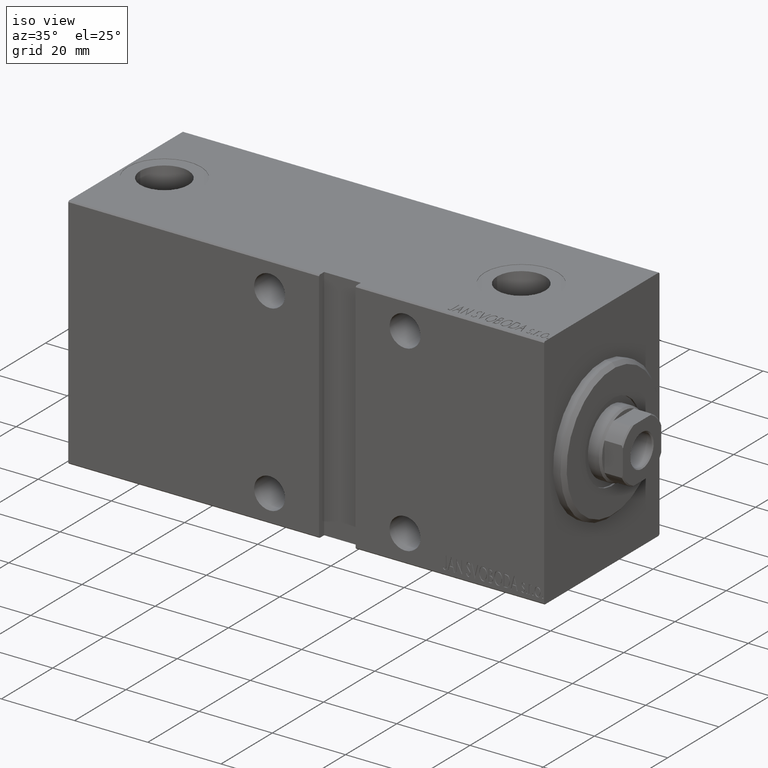
[diagram: clean part render]
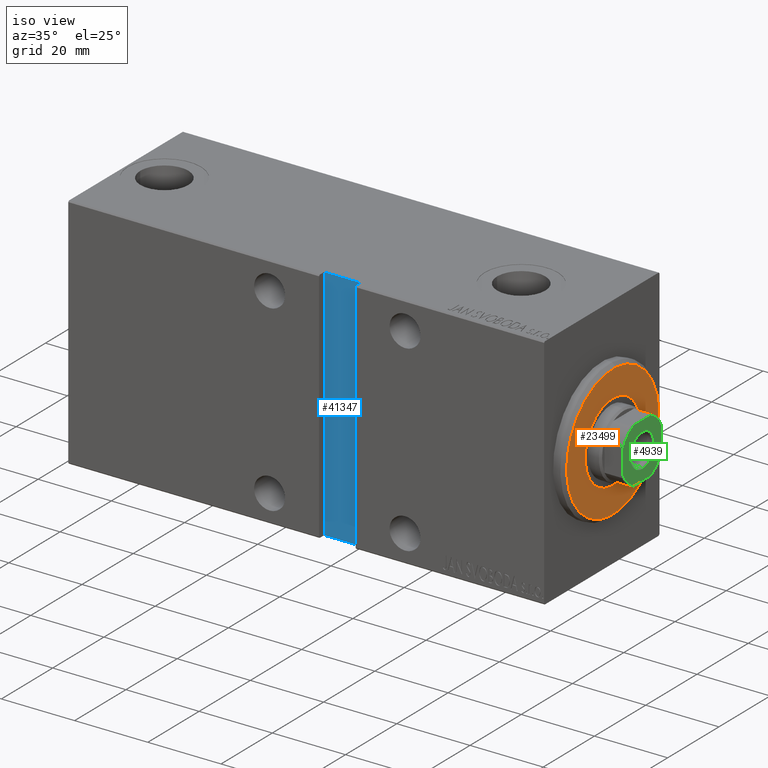
[diagram: same view with three faces highlighted in distinct colors, each labeled with its STEP entity id]
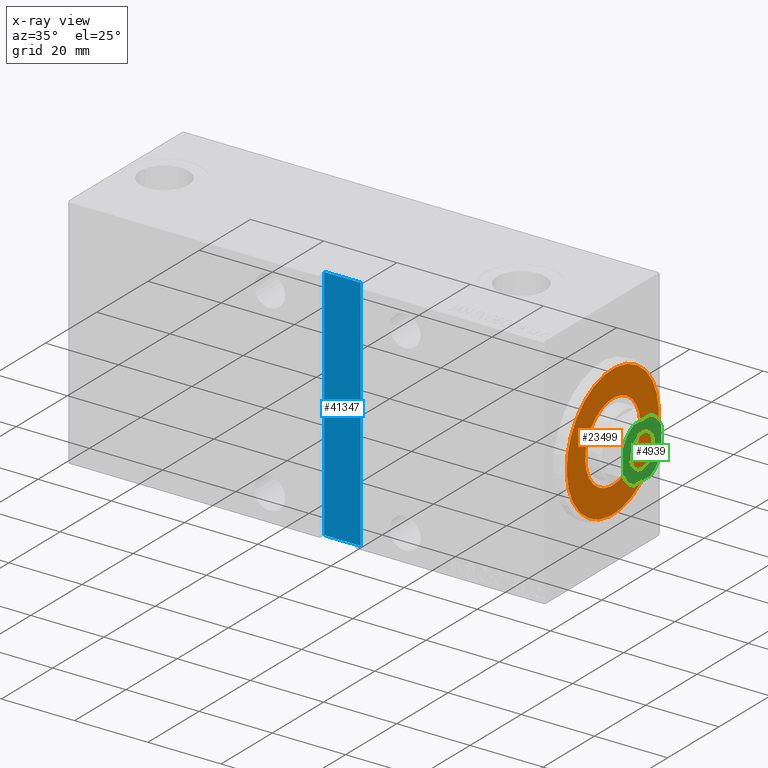
[diagram: x-ray of the same camera — body ghosted, the three highlighted faces saturated]
A machine part, iso view with three faces highlighted in distinct colors.
The next image is the same camera in x-ray (body ghosted, the three faces saturated) — at least one of them is partly hidden behind the body in this view.
Their STEP definitions:

[orange] entity #23499 — the highlighted planar face has unit normal (1, -0, -0).
#86 = DIRECTION ( 'NONE',  ( 1.000000000000000000, 0.000000000000000000, 0.000000000000000000 ) ) ;
#842 = EDGE_CURVE ( 'NONE', #10197, #4160, #37323, .T. ) ;
#1240 = CARTESIAN_POINT ( 'NONE',  ( 3.000000000000000000, 2.265596578422603002E-15, -17.99999999999999645 ) ) ;
#1411 = VERTEX_POINT ( 'NONE', #3026 ) ;
#3026 = CARTESIAN_POINT ( 'NONE',  ( 3.000000000000000000, 1.316495309083404618E-15, 10.75000000000000000 ) ) ;
#3244 = DIRECTION ( 'NONE',  ( 1.000000000000000000, 0.000000000000000000, 0.000000000000000000 ) ) ;
#4160 = VERTEX_POINT ( 'NONE', #4492 ) ;
#4268 = EDGE_LOOP ( 'NONE', ( #31704, #44466 ) ) ;
#4492 = CARTESIAN_POINT ( 'NONE',  ( 3.000000000000000000, 0.000000000000000000, 17.99999999999999645 ) ) ;
#4587 = CIRCLE ( 'NONE', #41261, 10.75000000000000000 ) ;
#4861 = DIRECTION ( 'NONE',  ( 1.000000000000000000, -0.000000000000000000, 0.000000000000000000 ) ) ;
#6183 = DIRECTION ( 'NONE',  ( 0.000000000000000000, 0.000000000000000000, -1.000000000000000000 ) ) ;
#6462 = DIRECTION ( 'NONE',  ( 0.000000000000000000, 0.000000000000000000, -1.000000000000000000 ) ) ;
#7132 = PLANE ( 'NONE',  #38065 ) ;
#10197 = VERTEX_POINT ( 'NONE', #1240 ) ;
#12919 = EDGE_CURVE ( 'NONE', #16190, #1411, #4587, .T. ) ;
#15247 = ORIENTED_EDGE ( 'NONE', *, *, #842, .T. ) ;
#16190 = VERTEX_POINT ( 'NONE', #16822 ) ;
#16387 = EDGE_CURVE ( 'NONE', #4160, #10197, #21342, .T. ) ;
#16822 = CARTESIAN_POINT ( 'NONE',  ( 3.000000000000000000, 0.000000000000000000, -10.75000000000000000 ) ) ;
#18145 = CARTESIAN_POINT ( 'NONE',  ( 3.000000000000000000, 0.000000000000000000, 0.000000000000000000 ) ) ;
#19906 = AXIS2_PLACEMENT_3D ( 'NONE', #18145, #4861, #31886 ) ;
#21342 = CIRCLE ( 'NONE', #19906, 17.99999999999999645 ) ;
#21443 = CARTESIAN_POINT ( 'NONE',  ( 3.000000000000000000, 0.000000000000000000, 0.000000000000000000 ) ) ;
#21561 = CIRCLE ( 'NONE', #39576, 10.75000000000000000 ) ;
#22738 = DIRECTION ( 'NONE',  ( 0.000000000000000000, 0.000000000000000000, -1.000000000000000000 ) ) ;
#23499 = ADVANCED_FACE ( 'NONE', ( #23567, #31222 ), #7132, .T. ) ;
#23567 = FACE_OUTER_BOUND ( 'NONE', #36703, .T. ) ;
#25798 = EDGE_CURVE ( 'NONE', #1411, #16190, #21561, .T. ) ;
#29409 = AXIS2_PLACEMENT_3D ( 'NONE', #36490, #43675, #22738 ) ;
#30997 = DIRECTION ( 'NONE',  ( 1.000000000000000000, -0.000000000000000000, 0.000000000000000000 ) ) ;
#31222 = FACE_BOUND ( 'NONE', #4268, .T. ) ;
#31704 = ORIENTED_EDGE ( 'NONE', *, *, #12919, .F. ) ;
#31886 = DIRECTION ( 'NONE',  ( 0.000000000000000000, 0.000000000000000000, -1.000000000000000000 ) ) ;
#33933 = CARTESIAN_POINT ( 'NONE',  ( 3.000000000000000000, 0.000000000000000000, 0.000000000000000000 ) ) ;
#35188 = DIRECTION ( 'NONE',  ( 0.000000000000000000, 0.000000000000000000, -1.000000000000000000 ) ) ;
#36490 = CARTESIAN_POINT ( 'NONE',  ( 3.000000000000000000, 0.000000000000000000, 0.000000000000000000 ) ) ;
#36703 = EDGE_LOOP ( 'NONE', ( #40261, #15247 ) ) ;
#37037 = CARTESIAN_POINT ( 'NONE',  ( 3.000000000000000000, 0.000000000000000000, 0.000000000000000000 ) ) ;
#37323 = CIRCLE ( 'NONE', #29409, 17.99999999999999645 ) ;
#38065 = AXIS2_PLACEMENT_3D ( 'NONE', #33933, #30997, #6462 ) ;
#39576 = AXIS2_PLACEMENT_3D ( 'NONE', #21443, #86, #35188 ) ;
#40261 = ORIENTED_EDGE ( 'NONE', *, *, #16387, .T. ) ;
#41261 = AXIS2_PLACEMENT_3D ( 'NONE', #37037, #3244, #6183 ) ;
#43675 = DIRECTION ( 'NONE',  ( 1.000000000000000000, -0.000000000000000000, 0.000000000000000000 ) ) ;
#44466 = ORIENTED_EDGE ( 'NONE', *, *, #25798, .F. ) ;

[blue] entity #41347 — the highlighted planar face has unit normal (0, -1, -0).
#1552 = ORIENTED_EDGE ( 'NONE', *, *, #30249, .T. ) ;
#2068 = VERTEX_POINT ( 'NONE', #19594 ) ;
#2295 = ORIENTED_EDGE ( 'NONE', *, *, #37093, .F. ) ;
#2541 = LINE ( 'NONE', #11830, #33540 ) ;
#4527 = LINE ( 'NONE', #31772, #13687 ) ;
#6230 = EDGE_CURVE ( 'NONE', #30309, #40309, #22957, .T. ) ;
#7569 = ORIENTED_EDGE ( 'NONE', *, *, #6230, .T. ) ;
#8136 = CARTESIAN_POINT ( 'NONE',  ( 0.000000000000000000, 20.49999999999999645, 0.000000000000000000 ) ) ;
#8786 = CARTESIAN_POINT ( 'NONE',  ( 51.50000000000001421, 20.49999999999999645, 32.50000000000000000 ) ) ;
#11026 = CARTESIAN_POINT ( 'NONE',  ( 51.50000000000001421, 20.49999999999999645, 32.50000000000000000 ) ) ;
#11830 = CARTESIAN_POINT ( 'NONE',  ( 51.50000000000001421, 20.49999999999999645, -32.50000000000000000 ) ) ;
#13687 = VECTOR ( 'NONE', #39427, 1000.000000000000000 ) ;
#13747 = VECTOR ( 'NONE', #32881, 1000.000000000000000 ) ;
#14913 = CARTESIAN_POINT ( 'NONE',  ( 51.50000000000001421, 20.49999999999999645, -32.50000000000000000 ) ) ;
#15464 = EDGE_CURVE ( 'NONE', #26112, #2068, #2541, .T. ) ;
#16057 = DIRECTION ( 'NONE',  ( 1.000000000000000000, 0.000000000000000000, 0.000000000000000000 ) ) ;
#17124 = DIRECTION ( 'NONE',  ( 0.000000000000000000, 0.000000000000000000, -1.000000000000000000 ) ) ;
#17458 = VECTOR ( 'NONE', #17124, 1000.000000000000000 ) ;
#17817 = PLANE ( 'NONE',  #38417 ) ;
#19594 = CARTESIAN_POINT ( 'NONE',  ( 61.50000000000000000, 20.50000000000000000, -32.50000000000000000 ) ) ;
#19813 = CARTESIAN_POINT ( 'NONE',  ( 51.50000000000001421, 20.49999999999999645, 32.50000000000000000 ) ) ;
#21196 = DIRECTION ( 'NONE',  ( 0.000000000000000000, -0.000000000000000000, 1.000000000000000000 ) ) ;
#22789 = EDGE_LOOP ( 'NONE', ( #42897, #2295, #7569, #1552 ) ) ;
#22957 = LINE ( 'NONE', #8786, #13747 ) ;
#24320 = LINE ( 'NONE', #11026, #17458 ) ;
#25287 = CARTESIAN_POINT ( 'NONE',  ( 61.50000000000000711, 20.49999999999999645, 32.50000000000000000 ) ) ;
#26112 = VERTEX_POINT ( 'NONE', #14913 ) ;
#30249 = EDGE_CURVE ( 'NONE', #40309, #2068, #4527, .T. ) ;
#30309 = VERTEX_POINT ( 'NONE', #19813 ) ;
#31772 = CARTESIAN_POINT ( 'NONE',  ( 61.50000000000000711, 20.49999999999999645, 32.50000000000000000 ) ) ;
#32881 = DIRECTION ( 'NONE',  ( 1.000000000000000000, 0.000000000000000000, 0.000000000000000000 ) ) ;
#33540 = VECTOR ( 'NONE', #16057, 1000.000000000000000 ) ;
#34725 = DIRECTION ( 'NONE',  ( -0.000000000000000000, 1.000000000000000000, 0.000000000000000000 ) ) ;
#37093 = EDGE_CURVE ( 'NONE', #30309, #26112, #24320, .T. ) ;
#38098 = FACE_OUTER_BOUND ( 'NONE', #22789, .T. ) ;
#38417 = AXIS2_PLACEMENT_3D ( 'NONE', #8136, #34725, #21196 ) ;
#39427 = DIRECTION ( 'NONE',  ( -2.135044278125300850E-16, 0.000000000000000000, -1.000000000000000000 ) ) ;
#40309 = VERTEX_POINT ( 'NONE', #25287 ) ;
#41347 = ADVANCED_FACE ( 'NONE', ( #38098 ), #17817, .T. ) ;
#42897 = ORIENTED_EDGE ( 'NONE', *, *, #15464, .F. ) ;

[green] entity #4939 — the highlighted planar face has unit normal (1, 0, -0).
#148 = DIRECTION ( 'NONE',  ( -0.000000000000000000, 0.000000000000000000, 1.000000000000000000 ) ) ;
#927 = DIRECTION ( 'NONE',  ( 1.000000000000000000, 0.000000000000000000, 0.000000000000000000 ) ) ;
#950 = DIRECTION ( 'NONE',  ( 0.000000000000000000, -0.000000000000000000, -1.000000000000000000 ) ) ;
#980 = EDGE_CURVE ( 'NONE', #36110, #42494, #27995, .T. ) ;
#1584 = DIRECTION ( 'NONE',  ( -0.000000000000000000, 0.000000000000000000, 1.000000000000000000 ) ) ;
#1913 = EDGE_CURVE ( 'NONE', #28784, #7722, #20079, .T. ) ;
#2636 = CARTESIAN_POINT ( 'NONE',  ( -7.499999999999999112, -3.315116890850124065, 135.0000000000000000 ) ) ;
#3732 = VECTOR ( 'NONE', #11909, 1000.000000000000000 ) ;
#3742 = CARTESIAN_POINT ( 'NONE',  ( 3.315116890850126286, 7.500000000000000888, 135.0000000000000000 ) ) ;
#4221 = ORIENTED_EDGE ( 'NONE', *, *, #11194, .T. ) ;
#4463 = CIRCLE ( 'NONE', #26742, 8.199999999999988631 ) ;
#4750 = DIRECTION ( 'NONE',  ( -0.000000000000000000, 0.000000000000000000, 1.000000000000000000 ) ) ;
#4911 = CARTESIAN_POINT ( 'NONE',  ( -7.500000000000001776, 7.500000000000001776, 135.0000000000000000 ) ) ;
#4939 = ADVANCED_FACE ( 'NONE', ( #31364, #34080 ), #30703, .T. ) ;
#5510 = VERTEX_POINT ( 'NONE', #3742 ) ;
#5666 = EDGE_CURVE ( 'NONE', #39803, #28784, #43572, .T. ) ;
#5779 = ORIENTED_EDGE ( 'NONE', *, *, #34411, .T. ) ;
#5823 = AXIS2_PLACEMENT_3D ( 'NONE', #21007, #10213, #21228 ) ;
#7405 = EDGE_CURVE ( 'NONE', #33403, #10227, #26040, .T. ) ;
#7414 = CARTESIAN_POINT ( 'NONE',  ( 3.315116890850226206, -7.499999999999996447, 135.0000000000000000 ) ) ;
#7722 = VERTEX_POINT ( 'NONE', #42742 ) ;
#8205 = EDGE_CURVE ( 'NONE', #15550, #5510, #4463, .T. ) ;
#8581 = AXIS2_PLACEMENT_3D ( 'NONE', #41349, #148, #40290 ) ;
#8719 = EDGE_CURVE ( 'NONE', #27476, #39803, #27479, .T. ) ;
#10213 = DIRECTION ( 'NONE',  ( -0.000000000000000000, 0.000000000000000000, 1.000000000000000000 ) ) ;
#10227 = VERTEX_POINT ( 'NONE', #35033 ) ;
#10622 = CARTESIAN_POINT ( 'NONE',  ( -7.500000000000000888, 3.315116890850168030, 135.0000000000000000 ) ) ;
#11194 = EDGE_CURVE ( 'NONE', #7722, #15550, #23932, .T. ) ;
#11207 = ORIENTED_EDGE ( 'NONE', *, *, #8719, .T. ) ;
#11482 = EDGE_LOOP ( 'NONE', ( #16073, #19288 ) ) ;
#11909 = DIRECTION ( 'NONE',  ( -1.000000000000000000, 5.782411586589357392E-17, -0.000000000000000000 ) ) ;
#12955 = VECTOR ( 'NONE', #15264, 1000.000000000000000 ) ;
#13795 = CIRCLE ( 'NONE', #32498, 4.549999999999984723 ) ;
#14867 = CARTESIAN_POINT ( 'NONE',  ( 0.000000000000000000, 0.000000000000000000, 135.0000000000000000 ) ) ;
#15264 = DIRECTION ( 'NONE',  ( 1.734723475976807094E-16, -1.000000000000000000, 0.000000000000000000 ) ) ;
#15387 = ORIENTED_EDGE ( 'NONE', *, *, #29559, .T. ) ;
#15550 = VERTEX_POINT ( 'NONE', #32104 ) ;
#16066 = ORIENTED_EDGE ( 'NONE', *, *, #5666, .T. ) ;
#16073 = ORIENTED_EDGE ( 'NONE', *, *, #7405, .T. ) ;
#16530 = CARTESIAN_POINT ( 'NONE',  ( -7.499999999999999112, -7.499999999999998224, 135.0000000000000000 ) ) ;
#18688 = DIRECTION ( 'NONE',  ( 1.000000000000000000, 0.000000000000000000, 0.000000000000000000 ) ) ;
#19288 = ORIENTED_EDGE ( 'NONE', *, *, #34022, .T. ) ;
#20079 = CIRCLE ( 'NONE', #39539, 8.200000000000025935 ) ;
#20367 = CARTESIAN_POINT ( 'NONE',  ( 0.000000000000000000, 0.000000000000000000, 135.0000000000000000 ) ) ;
#21007 = CARTESIAN_POINT ( 'NONE',  ( 0.000000000000000000, 0.000000000000000000, 135.0000000000000000 ) ) ;
#21161 = CARTESIAN_POINT ( 'NONE',  ( -3.315116890850167586, 7.500000000000000888, 135.0000000000000000 ) ) ;
#21228 = DIRECTION ( 'NONE',  ( 1.000000000000000000, 0.000000000000000000, 0.000000000000000000 ) ) ;
#21827 = LINE ( 'NONE', #28812, #3732 ) ;
#23932 = LINE ( 'NONE', #31137, #38343 ) ;
#25976 = VECTOR ( 'NONE', #37480, 1000.000000000000000 ) ;
#26040 = CIRCLE ( 'NONE', #42550, 4.549999999999984723 ) ;
#26742 = AXIS2_PLACEMENT_3D ( 'NONE', #20367, #27791, #38147 ) ;
#27476 = VERTEX_POINT ( 'NONE', #2636 ) ;
#27479 = CIRCLE ( 'NONE', #37582, 8.199999999999986855 ) ;
#27791 = DIRECTION ( 'NONE',  ( -0.000000000000000000, 0.000000000000000000, 1.000000000000000000 ) ) ;
#27995 = CIRCLE ( 'NONE', #8581, 8.200000000000006395 ) ;
#28016 = ORIENTED_EDGE ( 'NONE', *, *, #980, .T. ) ;
#28784 = VERTEX_POINT ( 'NONE', #7414 ) ;
#28812 = CARTESIAN_POINT ( 'NONE',  ( -7.500000000000001776, 7.500000000000001776, 135.0000000000000000 ) ) ;
#29124 = ORIENTED_EDGE ( 'NONE', *, *, #1913, .T. ) ;
#29559 = EDGE_CURVE ( 'NONE', #42494, #27476, #35769, .T. ) ;
#30703 = PLANE ( 'NONE',  #5823 ) ;
#31137 = CARTESIAN_POINT ( 'NONE',  ( 7.499999999999997335, 7.500000000000000888, 135.0000000000000000 ) ) ;
#31364 = FACE_BOUND ( 'NONE', #11482, .T. ) ;
#31505 = CARTESIAN_POINT ( 'NONE',  ( 4.549999999999984723, 0.000000000000000000, 135.0000000000000000 ) ) ;
#32104 = CARTESIAN_POINT ( 'NONE',  ( 7.499999999999998224, 3.315116890850132059, 135.0000000000000000 ) ) ;
#32498 = AXIS2_PLACEMENT_3D ( 'NONE', #41703, #950, #39001 ) ;
#32883 = DIRECTION ( 'NONE',  ( 0.000000000000000000, -0.000000000000000000, -1.000000000000000000 ) ) ;
#33403 = VERTEX_POINT ( 'NONE', #31505 ) ;
#34022 = EDGE_CURVE ( 'NONE', #10227, #33403, #13795, .T. ) ;
#34080 = FACE_OUTER_BOUND ( 'NONE', #42944, .T. ) ;
#34411 = EDGE_CURVE ( 'NONE', #5510, #36110, #21827, .T. ) ;
#34632 = ORIENTED_EDGE ( 'NONE', *, *, #8205, .T. ) ;
#35033 = CARTESIAN_POINT ( 'NONE',  ( -4.549999999999984723, 5.572142936120437605E-16, 135.0000000000000000 ) ) ;
#35151 = CARTESIAN_POINT ( 'NONE',  ( 0.000000000000000000, 0.000000000000000000, 135.0000000000000000 ) ) ;
#35769 = LINE ( 'NONE', #4911, #12955 ) ;
#36110 = VERTEX_POINT ( 'NONE', #21161 ) ;
#36270 = CARTESIAN_POINT ( 'NONE',  ( 0.000000000000000000, 0.000000000000000000, 135.0000000000000000 ) ) ;
#36697 = CARTESIAN_POINT ( 'NONE',  ( -3.315116890850128950, -7.499999999999998224, 135.0000000000000000 ) ) ;
#37480 = DIRECTION ( 'NONE',  ( 1.000000000000000000, 0.000000000000000000, 0.000000000000000000 ) ) ;
#37582 = AXIS2_PLACEMENT_3D ( 'NONE', #35151, #4750, #927 ) ;
#38147 = DIRECTION ( 'NONE',  ( 1.000000000000000000, 0.000000000000000000, 0.000000000000000000 ) ) ;
#38340 = DIRECTION ( 'NONE',  ( -1.156482317317871478E-16, 1.000000000000000000, -0.000000000000000000 ) ) ;
#38343 = VECTOR ( 'NONE', #38340, 1000.000000000000000 ) ;
#39001 = DIRECTION ( 'NONE',  ( 1.000000000000000000, 0.000000000000000000, 0.000000000000000000 ) ) ;
#39539 = AXIS2_PLACEMENT_3D ( 'NONE', #14867, #1584, #18688 ) ;
#39803 = VERTEX_POINT ( 'NONE', #36697 ) ;
#40290 = DIRECTION ( 'NONE',  ( 1.000000000000000000, 0.000000000000000000, 0.000000000000000000 ) ) ;
#41349 = CARTESIAN_POINT ( 'NONE',  ( 0.000000000000000000, 0.000000000000000000, 135.0000000000000000 ) ) ;
#41703 = CARTESIAN_POINT ( 'NONE',  ( 0.000000000000000000, 0.000000000000000000, 135.0000000000000000 ) ) ;
#42494 = VERTEX_POINT ( 'NONE', #10622 ) ;
#42550 = AXIS2_PLACEMENT_3D ( 'NONE', #36270, #32883, #43243 ) ;
#42742 = CARTESIAN_POINT ( 'NONE',  ( 7.499999999999998224, -3.315116890850224429, 135.0000000000000000 ) ) ;
#42944 = EDGE_LOOP ( 'NONE', ( #4221, #34632, #5779, #28016, #15387, #11207, #16066, #29124 ) ) ;
#43243 = DIRECTION ( 'NONE',  ( 1.000000000000000000, 0.000000000000000000, 0.000000000000000000 ) ) ;
#43572 = LINE ( 'NONE', #16530, #25976 ) ;